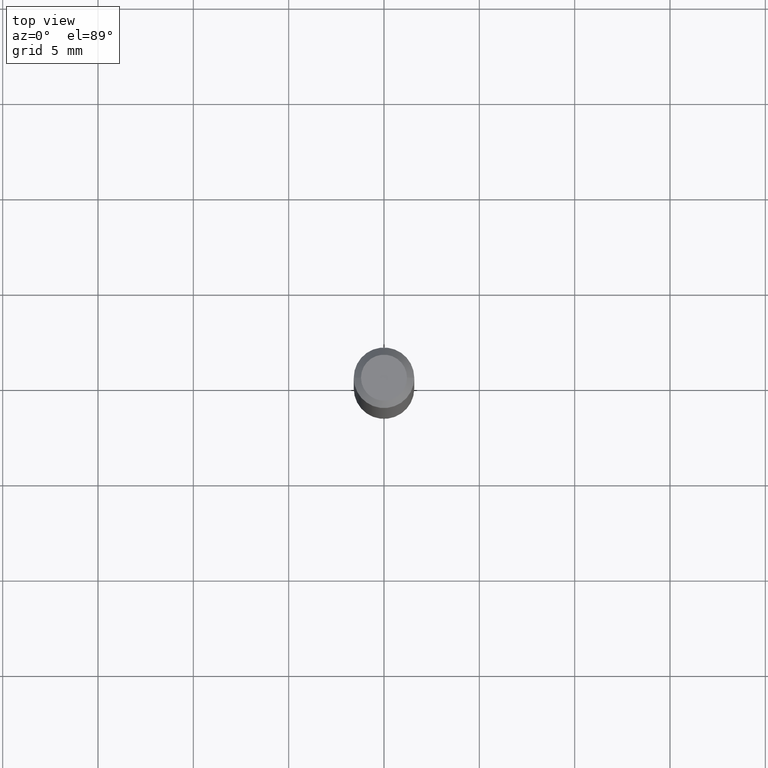
[diagram: clean part render]
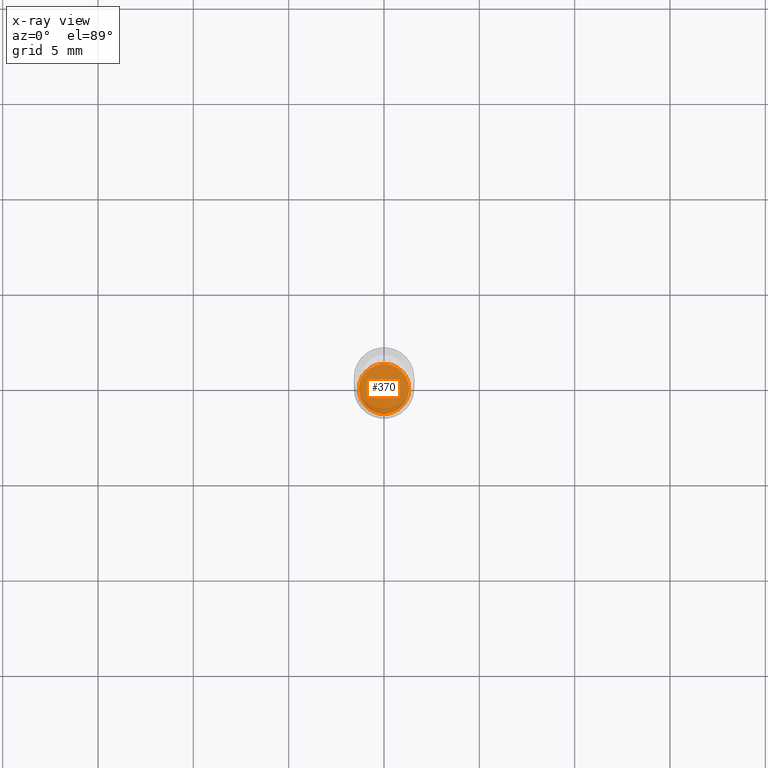
[diagram: x-ray — body ghosted, one internal face saturated and labeled with its STEP entity id]
A machine part, top view, then the same camera in x-ray: the body is ghosted and one INTERNAL B-rep face — a face not visible from any outside direction — is saturated and labeled: STEP entity #370.
In plain terms, the highlighted planar face has unit normal (-0, 0, 1).
Its self-contained STEP definition (entity closure, byte-faithful):
#48 = EDGE_CURVE ( 'NONE', #284, #466, #344, .T. ) ;
#62 = EDGE_LOOP ( 'NONE', ( #124, #448 ) ) ;
#75 = AXIS2_PLACEMENT_3D ( 'NONE', #271, #415, #170 ) ;
#89 = CARTESIAN_POINT ( 'NONE',  ( 3.281819137900453057E-29, -4.685567956727500961E-15, -1.342000000000000082 ) ) ;
#116 = CARTESIAN_POINT ( 'NONE',  ( 3.281819137900453057E-29, -4.685567956727500961E-15, -1.342000000000000082 ) ) ;
#124 = ORIENTED_EDGE ( 'NONE', *, *, #146, .F. ) ;
#135 = CIRCLE ( 'NONE', #193, 0.05199999999999999067 ) ;
#146 = EDGE_CURVE ( 'NONE', #466, #284, #135, .T. ) ;
#170 = DIRECTION ( 'NONE',  ( 1.000000000000000000, -6.982962677686265922E-15, 4.876176775795935793E-29 ) ) ;
#193 = AXIS2_PLACEMENT_3D ( 'NONE', #116, #252, #222 ) ;
#222 = DIRECTION ( 'NONE',  ( 1.000000000000000000, -6.982962677686258822E-15, 0.000000000000000000 ) ) ;
#252 = DIRECTION ( 'NONE',  ( -2.445468806185136597E-29, 3.491481338843145583E-15, 1.000000000000000000 ) ) ;
#259 = DIRECTION ( 'NONE',  ( -2.445468806185136597E-29, 3.491481338843145583E-15, 1.000000000000000000 ) ) ;
#271 = CARTESIAN_POINT ( 'NONE',  ( 3.281819137900453057E-29, -4.685567956727500961E-15, -1.342000000000000082 ) ) ;
#284 = VERTEX_POINT ( 'NONE', #457 ) ;
#343 = PLANE ( 'NONE',  #75 ) ;
#344 = CIRCLE ( 'NONE', #463, 0.05199999999999999067 ) ;
#370 = ADVANCED_FACE ( 'NONE', ( #411 ), #343, .F. ) ;
#371 = DIRECTION ( 'NONE',  ( 1.000000000000000000, -6.982962677686258822E-15, 0.000000000000000000 ) ) ;
#411 = FACE_OUTER_BOUND ( 'NONE', #62, .T. ) ;
#415 = DIRECTION ( 'NONE',  ( -2.438088387897960049E-29, 3.491481338843145188E-15, 1.000000000000000000 ) ) ;
#426 = CARTESIAN_POINT ( 'NONE',  ( 0.05199999999999999067, -5.048682015967186325E-15, -1.342000000000000082 ) ) ;
#448 = ORIENTED_EDGE ( 'NONE', *, *, #48, .F. ) ;
#457 = CARTESIAN_POINT ( 'NONE',  ( -0.05199999999999999067, -4.313436506958138124E-15, -1.342000000000000082 ) ) ;
#463 = AXIS2_PLACEMENT_3D ( 'NONE', #89, #259, #371 ) ;
#466 = VERTEX_POINT ( 'NONE', #426 ) ;